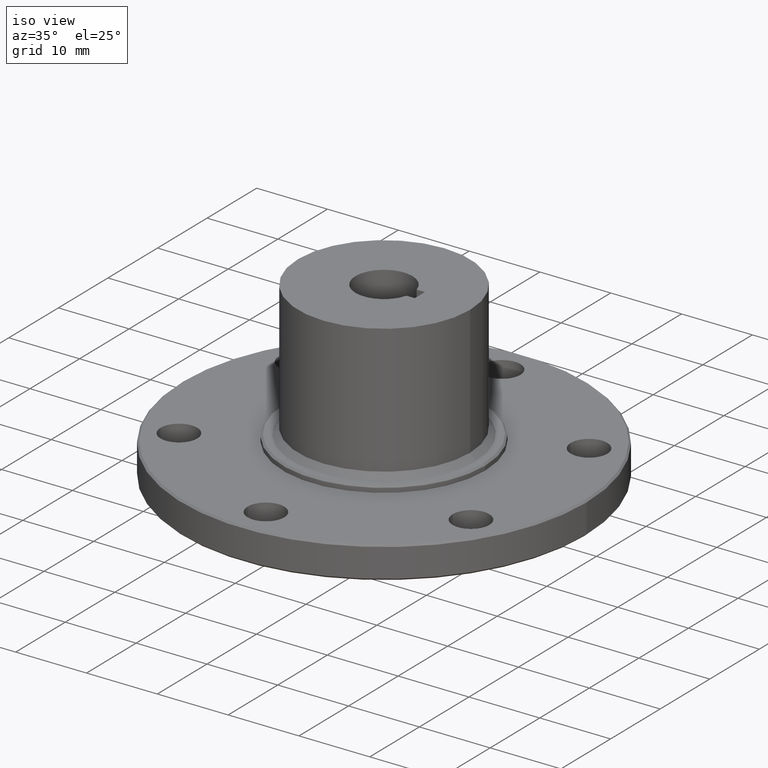
[diagram: clean part render]
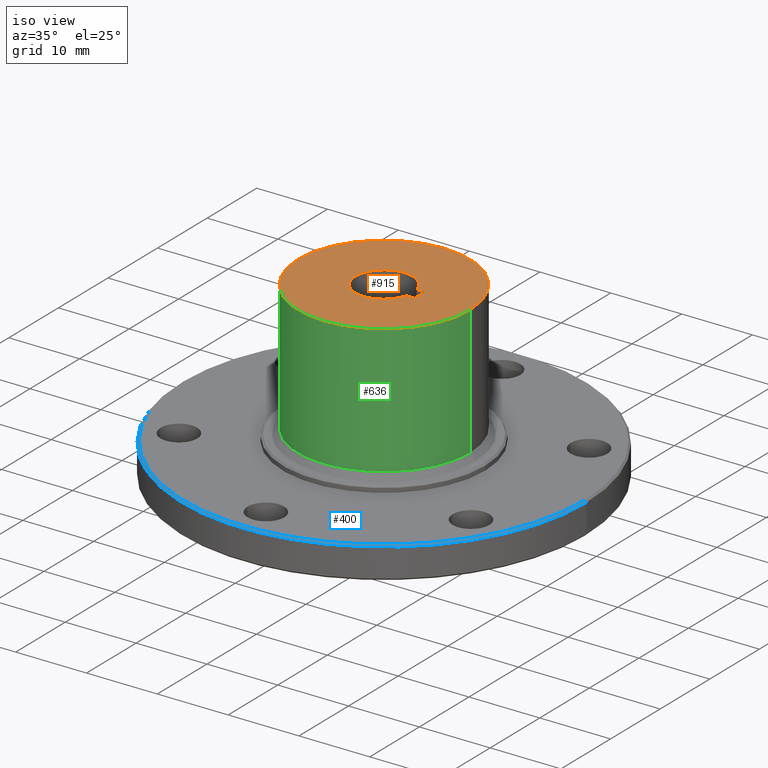
[diagram: same view with three faces highlighted in distinct colors, each labeled with its STEP entity id]
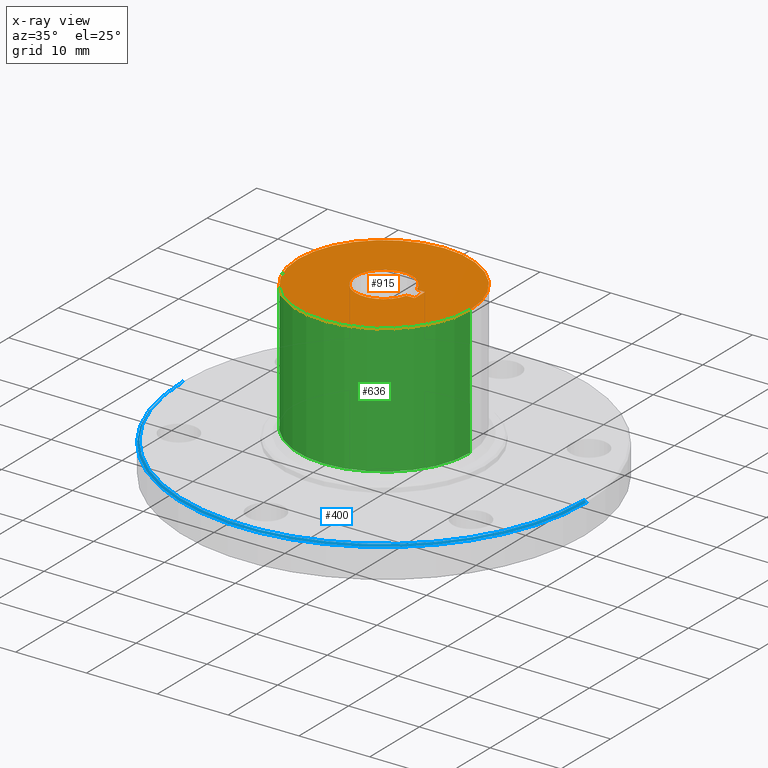
[diagram: x-ray of the same camera — body ghosted, the three highlighted faces saturated]
A machine part, iso view with three faces highlighted in distinct colors.
The next image is the same camera in x-ray (body ghosted, the three faces saturated) — at least one of them is partly hidden behind the body in this view.
Their STEP definitions:

[orange] entity #915 — the highlighted planar face has unit normal (0, 0, 1).
#2 = CARTESIAN_POINT ( 'NONE',  ( 0.0000000000000000000, 0.0000000000000000000, 1.000000000000000000 ) ) ;
#61 = LINE ( 'NONE', #68, #1068 ) ;
#68 = CARTESIAN_POINT ( 'NONE',  ( 0.1532383763944267200, 0.04050000000000000100, 1.000000000000000000 ) ) ;
#91 = DIRECTION ( 'NONE',  ( 0.0000000000000000000, 0.0000000000000000000, 1.000000000000000000 ) ) ;
#96 = DIRECTION ( 'NONE',  ( 0.0000000000000000000, 0.0000000000000000000, 1.000000000000000000 ) ) ;
#128 = VERTEX_POINT ( 'NONE', #447 ) ;
#145 = LINE ( 'NONE', #539, #175 ) ;
#157 = ORIENTED_EDGE ( 'NONE', *, *, #1199, .F. ) ;
#175 = VECTOR ( 'NONE', #1099, 39.37007874015748100 ) ;
#197 = EDGE_CURVE ( 'NONE', #382, #753, #880, .T. ) ;
#221 = VERTEX_POINT ( 'NONE', #511 ) ;
#227 = ORIENTED_EDGE ( 'NONE', *, *, #568, .F. ) ;
#264 = CARTESIAN_POINT ( 'NONE',  ( 0.1532383763944267000, -0.04049999999999998700, 1.000000000000000000 ) ) ;
#311 = ORIENTED_EDGE ( 'NONE', *, *, #509, .F. ) ;
#327 = VECTOR ( 'NONE', #363, 39.37007874015748100 ) ;
#363 = DIRECTION ( 'NONE',  ( 1.000000000000000000, -3.731084829411996400E-016, 0.0000000000000000000 ) ) ;
#382 = VERTEX_POINT ( 'NONE', #458 ) ;
#388 = CARTESIAN_POINT ( 'NONE',  ( 0.4779999999999999800, 5.853811699924347700E-017, 1.000000000000000000 ) ) ;
#389 = CARTESIAN_POINT ( 'NONE',  ( 0.0000000000000000000, 0.0000000000000000000, 1.000000000000000000 ) ) ;
#411 = CIRCLE ( 'NONE', #1098, 0.1585000000000000000 ) ;
#440 = EDGE_LOOP ( 'NONE', ( #157, #1078, #311, #227 ) ) ;
#443 = CIRCLE ( 'NONE', #858, 0.4779999999999999800 ) ;
#447 = CARTESIAN_POINT ( 'NONE',  ( 0.1990000000000000100, 0.04050000000000000100, 1.000000000000000000 ) ) ;
#458 = CARTESIAN_POINT ( 'NONE',  ( -0.4779999999999999800, 0.0000000000000000000, 1.000000000000000000 ) ) ;
#485 = ORIENTED_EDGE ( 'NONE', *, *, #197, .T. ) ;
#509 = EDGE_CURVE ( 'NONE', #1162, #221, #411, .T. ) ;
#511 = CARTESIAN_POINT ( 'NONE',  ( 0.1532383763944267000, -0.04049999999999998700, 1.000000000000000000 ) ) ;
#535 = CARTESIAN_POINT ( 'NONE',  ( 0.1532383763944267200, 0.04050000000000000100, 1.000000000000000000 ) ) ;
#539 = CARTESIAN_POINT ( 'NONE',  ( 0.1990000000000000100, 0.04050000000000000100, 1.000000000000000000 ) ) ;
#568 = EDGE_CURVE ( 'NONE', #128, #1162, #61, .T. ) ;
#576 = PLANE ( 'NONE',  #995 ) ;
#593 = LINE ( 'NONE', #264, #327 ) ;
#623 = CARTESIAN_POINT ( 'NONE',  ( 0.1990000000000000100, -0.04050000000000000100, 1.000000000000000000 ) ) ;
#649 = DIRECTION ( 'NONE',  ( -1.000000000000000000, 0.0000000000000000000, 0.0000000000000000000 ) ) ;
#676 = CARTESIAN_POINT ( 'NONE',  ( 0.0000000000000000000, 0.0000000000000000000, 1.000000000000000000 ) ) ;
#683 = EDGE_CURVE ( 'NONE', #221, #1116, #593, .T. ) ;
#687 = DIRECTION ( 'NONE',  ( 1.000000000000000000, 0.0000000000000000000, 0.0000000000000000000 ) ) ;
#709 = AXIS2_PLACEMENT_3D ( 'NONE', #389, #769, #687 ) ;
#728 = ORIENTED_EDGE ( 'NONE', *, *, #975, .T. ) ;
#753 = VERTEX_POINT ( 'NONE', #388 ) ;
#765 = DIRECTION ( 'NONE',  ( 1.000000000000000000, 0.0000000000000000000, 0.0000000000000000000 ) ) ;
#769 = DIRECTION ( 'NONE',  ( 0.0000000000000000000, 0.0000000000000000000, 1.000000000000000000 ) ) ;
#771 = DIRECTION ( 'NONE',  ( 1.000000000000000000, 0.0000000000000000000, 0.0000000000000000000 ) ) ;
#858 = AXIS2_PLACEMENT_3D ( 'NONE', #676, #96, #771 ) ;
#862 = EDGE_LOOP ( 'NONE', ( #485, #728 ) ) ;
#880 = CIRCLE ( 'NONE', #709, 0.4779999999999999800 ) ;
#915 = ADVANCED_FACE ( 'NONE', ( #957, #920 ), #576, .T. ) ;
#920 = FACE_OUTER_BOUND ( 'NONE', #862, .T. ) ;
#924 = DIRECTION ( 'NONE',  ( 0.0000000000000000000, 0.0000000000000000000, 1.000000000000000000 ) ) ;
#931 = CARTESIAN_POINT ( 'NONE',  ( 0.0000000000000000000, 0.0000000000000000000, 1.000000000000000000 ) ) ;
#957 = FACE_BOUND ( 'NONE', #440, .T. ) ;
#975 = EDGE_CURVE ( 'NONE', #753, #382, #443, .T. ) ;
#995 = AXIS2_PLACEMENT_3D ( 'NONE', #2, #91, #765 ) ;
#1024 = DIRECTION ( 'NONE',  ( 1.000000000000000000, 0.0000000000000000000, 0.0000000000000000000 ) ) ;
#1068 = VECTOR ( 'NONE', #649, 39.37007874015748100 ) ;
#1078 = ORIENTED_EDGE ( 'NONE', *, *, #683, .F. ) ;
#1098 = AXIS2_PLACEMENT_3D ( 'NONE', #931, #924, #1024 ) ;
#1099 = DIRECTION ( 'NONE',  ( 0.0000000000000000000, 1.000000000000000000, 0.0000000000000000000 ) ) ;
#1116 = VERTEX_POINT ( 'NONE', #623 ) ;
#1162 = VERTEX_POINT ( 'NONE', #535 ) ;
#1199 = EDGE_CURVE ( 'NONE', #1116, #128, #145, .T. ) ;

[blue] entity #400 — the highlighted conical surface has half-angle 45 deg.
#64 = CARTESIAN_POINT ( 'NONE',  ( 1.125000000000000200, 1.377727649040772900E-016, 0.2049999999999996000 ) ) ;
#90 = LINE ( 'NONE', #459, #856 ) ;
#133 = CIRCLE ( 'NONE', #186, 1.125000000000000200 ) ;
#171 = DIRECTION ( 'NONE',  ( 0.0000000000000000000, 0.0000000000000000000, -1.000000000000000000 ) ) ;
#181 = CARTESIAN_POINT ( 'NONE',  ( -1.213184216936841500E-031, 0.0000000000000000000, 0.2049999999999996000 ) ) ;
#186 = AXIS2_PLACEMENT_3D ( 'NONE', #181, #854, #280 ) ;
#198 = CARTESIAN_POINT ( 'NONE',  ( -1.114999999999999800, 0.0000000000000000000, 0.2150000000000000200 ) ) ;
#222 = EDGE_CURVE ( 'NONE', #300, #237, #371, .T. ) ;
#237 = VERTEX_POINT ( 'NONE', #698 ) ;
#263 = ORIENTED_EDGE ( 'NONE', *, *, #679, .F. ) ;
#265 = VECTOR ( 'NONE', #847, 39.37007874015748100 ) ;
#266 = CARTESIAN_POINT ( 'NONE',  ( -1.213184216936841500E-031, 0.0000000000000000000, 0.2049999999999996000 ) ) ;
#274 = ORIENTED_EDGE ( 'NONE', *, *, #538, .F. ) ;
#280 = DIRECTION ( 'NONE',  ( -1.000000000000000000, 0.0000000000000000000, 0.0000000000000000000 ) ) ;
#295 = AXIS2_PLACEMENT_3D ( 'NONE', #266, #171, #548 ) ;
#300 = VERTEX_POINT ( 'NONE', #198 ) ;
#352 = DIRECTION ( 'NONE',  ( 0.7071067811865523500, 8.659560562354992000E-017, -0.7071067811865426900 ) ) ;
#371 = CIRCLE ( 'NONE', #776, 1.114999999999999800 ) ;
#400 = ADVANCED_FACE ( 'NONE', ( #474 ), #948, .T. ) ;
#459 = CARTESIAN_POINT ( 'NONE',  ( 1.125000000000000200, 1.377727649040772900E-016, 0.2049999999999996000 ) ) ;
#474 = FACE_OUTER_BOUND ( 'NONE', #930, .T. ) ;
#524 = LINE ( 'NONE', #567, #265 ) ;
#538 = EDGE_CURVE ( 'NONE', #237, #1213, #90, .T. ) ;
#548 = DIRECTION ( 'NONE',  ( -1.000000000000000000, 0.0000000000000000000, 0.0000000000000000000 ) ) ;
#566 = ORIENTED_EDGE ( 'NONE', *, *, #1056, .T. ) ;
#567 = CARTESIAN_POINT ( 'NONE',  ( -1.125000000000000200, 0.0000000000000000000, 0.2049999999999996000 ) ) ;
#635 = VERTEX_POINT ( 'NONE', #1196 ) ;
#679 = EDGE_CURVE ( 'NONE', #1213, #635, #133, .T. ) ;
#698 = CARTESIAN_POINT ( 'NONE',  ( 1.114999999999999800, 1.371604415045035500E-016, 0.2150000000000000200 ) ) ;
#776 = AXIS2_PLACEMENT_3D ( 'NONE', #1158, #1156, #1151 ) ;
#847 = DIRECTION ( 'NONE',  ( -0.7071067811865523500, 0.0000000000000000000, -0.7071067811865426900 ) ) ;
#854 = DIRECTION ( 'NONE',  ( 0.0000000000000000000, 0.0000000000000000000, -1.000000000000000000 ) ) ;
#856 = VECTOR ( 'NONE', #352, 39.37007874015748100 ) ;
#930 = EDGE_LOOP ( 'NONE', ( #274, #981, #566, #263 ) ) ;
#948 = CONICAL_SURFACE ( 'NONE', #295, 1.125000000000000200, 0.7853981633974551600 ) ;
#981 = ORIENTED_EDGE ( 'NONE', *, *, #222, .F. ) ;
#1056 = EDGE_CURVE ( 'NONE', #300, #635, #524, .T. ) ;
#1151 = DIRECTION ( 'NONE',  ( -1.000000000000000000, 0.0000000000000000000, 0.0000000000000000000 ) ) ;
#1156 = DIRECTION ( 'NONE',  ( -0.0000000000000000000, -0.0000000000000000000, 1.000000000000000000 ) ) ;
#1158 = CARTESIAN_POINT ( 'NONE',  ( -1.213184216936841500E-031, 0.0000000000000000000, 0.2150000000000000200 ) ) ;
#1196 = CARTESIAN_POINT ( 'NONE',  ( -1.125000000000000200, 0.0000000000000000000, 0.2049999999999996000 ) ) ;
#1213 = VERTEX_POINT ( 'NONE', #64 ) ;

[green] entity #636 — the highlighted cylindrical surface (partial cylindrical patch) has radius 12.1412 mm, axis along (0, 0, -1).
#4 = AXIS2_PLACEMENT_3D ( 'NONE', #929, #738, #349 ) ;
#35 = EDGE_CURVE ( 'NONE', #382, #141, #961, .T. ) ;
#62 = EDGE_CURVE ( 'NONE', #141, #918, #129, .T. ) ;
#129 = CIRCLE ( 'NONE', #888, 0.4779999999999999800 ) ;
#141 = VERTEX_POINT ( 'NONE', #432 ) ;
#180 = EDGE_LOOP ( 'NONE', ( #513, #734, #620, #1094 ) ) ;
#197 = EDGE_CURVE ( 'NONE', #382, #753, #880, .T. ) ;
#349 = DIRECTION ( 'NONE',  ( -1.000000000000000000, 0.0000000000000000000, 0.0000000000000000000 ) ) ;
#382 = VERTEX_POINT ( 'NONE', #458 ) ;
#388 = CARTESIAN_POINT ( 'NONE',  ( 0.4779999999999999800, 5.853811699924347700E-017, 1.000000000000000000 ) ) ;
#389 = CARTESIAN_POINT ( 'NONE',  ( 0.0000000000000000000, 0.0000000000000000000, 1.000000000000000000 ) ) ;
#432 = CARTESIAN_POINT ( 'NONE',  ( -0.4779999999999999800, 0.0000000000000000000, 0.2820000000000018000 ) ) ;
#452 = EDGE_CURVE ( 'NONE', #753, #918, #699, .T. ) ;
#458 = CARTESIAN_POINT ( 'NONE',  ( -0.4779999999999999800, 0.0000000000000000000, 1.000000000000000000 ) ) ;
#513 = ORIENTED_EDGE ( 'NONE', *, *, #452, .F. ) ;
#617 = CYLINDRICAL_SURFACE ( 'NONE', #4, 0.4779999999999999800 ) ;
#620 = ORIENTED_EDGE ( 'NONE', *, *, #35, .T. ) ;
#636 = ADVANCED_FACE ( 'NONE', ( #1115 ), #617, .T. ) ;
#640 = DIRECTION ( 'NONE',  ( 1.000000000000000000, 0.0000000000000000000, 0.0000000000000000000 ) ) ;
#687 = DIRECTION ( 'NONE',  ( 1.000000000000000000, 0.0000000000000000000, 0.0000000000000000000 ) ) ;
#693 = DIRECTION ( 'NONE',  ( 0.0000000000000000000, 0.0000000000000000000, 1.000000000000000000 ) ) ;
#696 = CARTESIAN_POINT ( 'NONE',  ( 0.0000000000000000000, 0.0000000000000000000, 0.2820000000000018000 ) ) ;
#699 = LINE ( 'NONE', #1121, #914 ) ;
#709 = AXIS2_PLACEMENT_3D ( 'NONE', #389, #769, #687 ) ;
#734 = ORIENTED_EDGE ( 'NONE', *, *, #197, .F. ) ;
#738 = DIRECTION ( 'NONE',  ( 0.0000000000000000000, 0.0000000000000000000, -1.000000000000000000 ) ) ;
#753 = VERTEX_POINT ( 'NONE', #388 ) ;
#769 = DIRECTION ( 'NONE',  ( 0.0000000000000000000, 0.0000000000000000000, 1.000000000000000000 ) ) ;
#880 = CIRCLE ( 'NONE', #709, 0.4779999999999999800 ) ;
#888 = AXIS2_PLACEMENT_3D ( 'NONE', #696, #693, #640 ) ;
#894 = CARTESIAN_POINT ( 'NONE',  ( -0.4779999999999999800, 0.0000000000000000000, 1.000000000000000000 ) ) ;
#904 = DIRECTION ( 'NONE',  ( 0.0000000000000000000, 0.0000000000000000000, -1.000000000000000000 ) ) ;
#914 = VECTOR ( 'NONE', #1125, 39.37007874015748100 ) ;
#918 = VERTEX_POINT ( 'NONE', #1136 ) ;
#929 = CARTESIAN_POINT ( 'NONE',  ( 0.0000000000000000000, 0.0000000000000000000, 1.000000000000000000 ) ) ;
#961 = LINE ( 'NONE', #894, #1166 ) ;
#1094 = ORIENTED_EDGE ( 'NONE', *, *, #62, .T. ) ;
#1115 = FACE_OUTER_BOUND ( 'NONE', #180, .T. ) ;
#1121 = CARTESIAN_POINT ( 'NONE',  ( 0.4779999999999999800, 5.853811699924347700E-017, 1.000000000000000000 ) ) ;
#1125 = DIRECTION ( 'NONE',  ( 0.0000000000000000000, 0.0000000000000000000, -1.000000000000000000 ) ) ;
#1136 = CARTESIAN_POINT ( 'NONE',  ( 0.4779999999999999800, 5.853811699924347700E-017, 0.2820000000000018000 ) ) ;
#1166 = VECTOR ( 'NONE', #904, 39.37007874015748100 ) ;